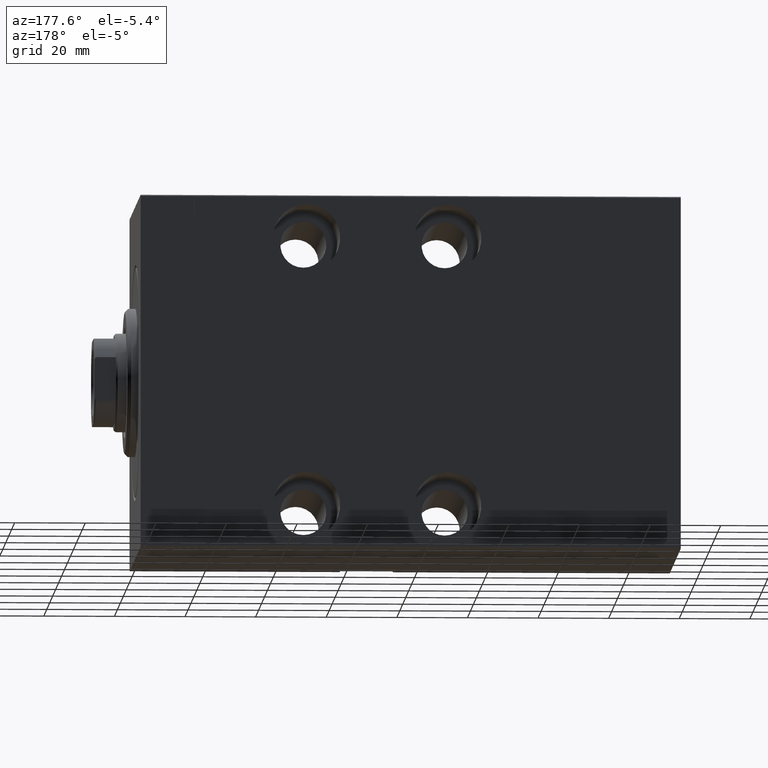
[diagram: clean part render]
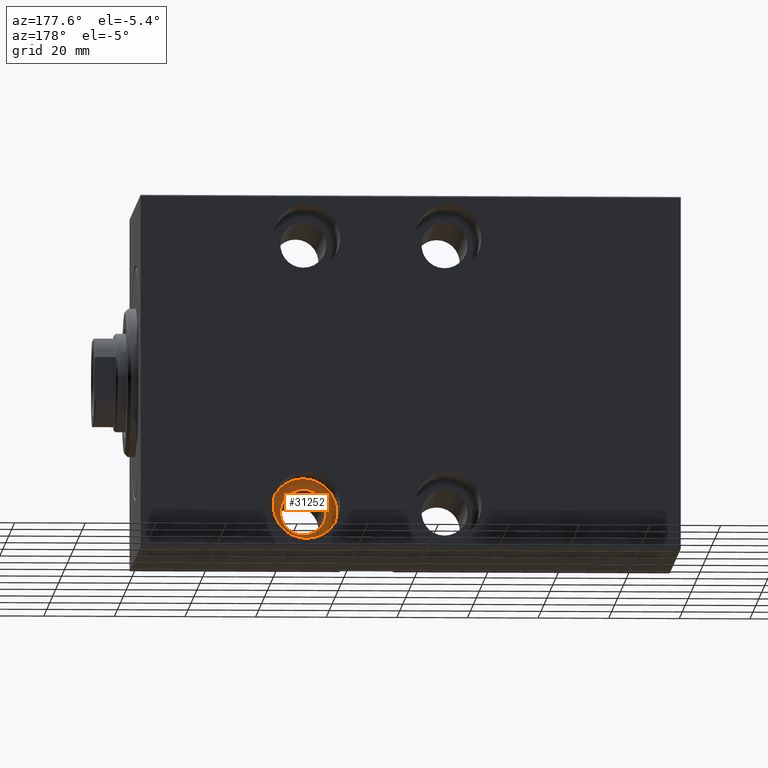
[diagram: same view with one face highlighted and labeled with its STEP entity id]
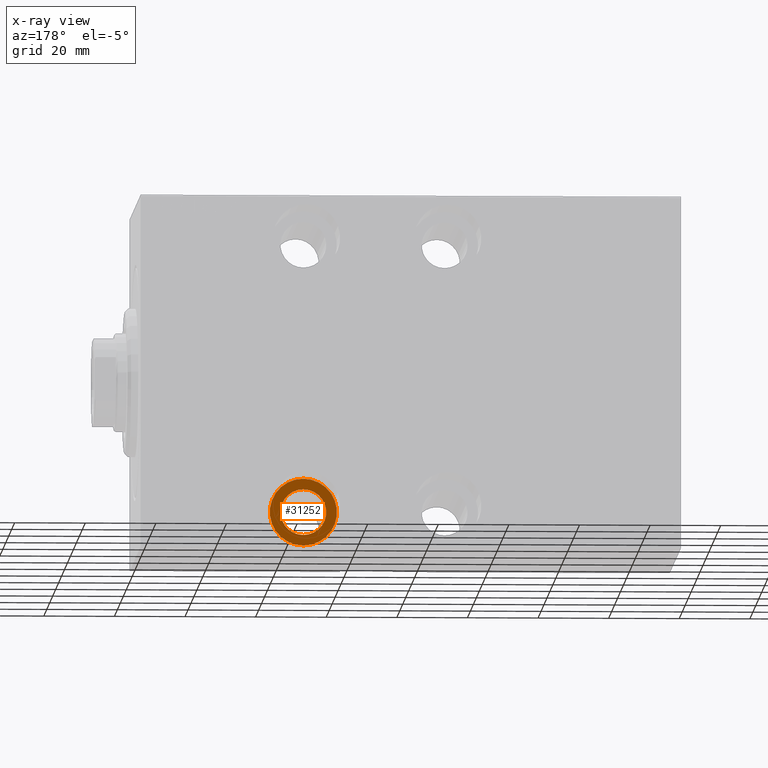
[diagram: x-ray of the same camera — body ghosted, the highlighted face saturated]
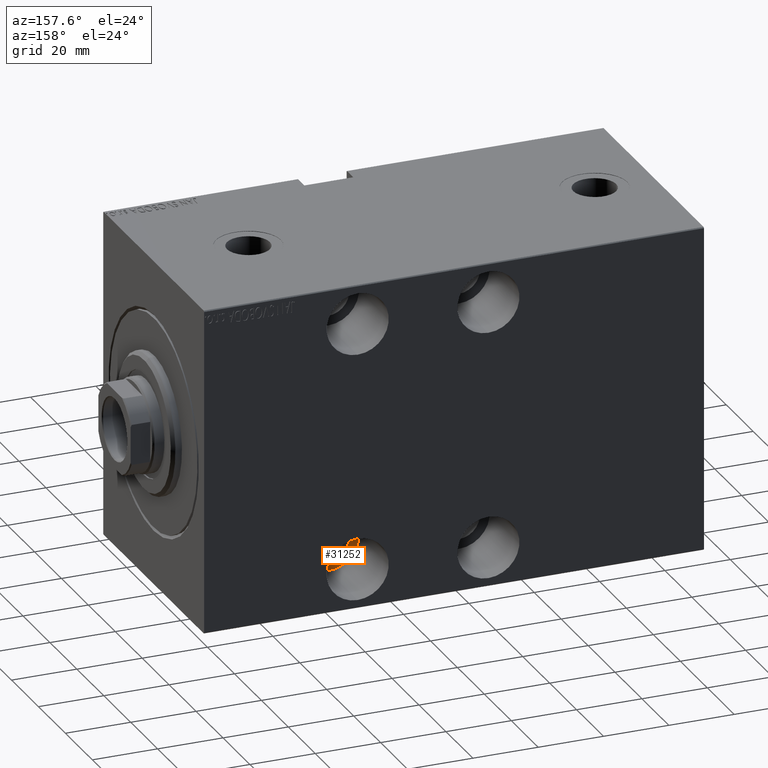
[diagram: same view with one face highlighted and labeled with its STEP entity id]
A machine part, auxiliary view. The second image highlights one B-rep face of the part: STEP entity #31252.
The next image is the same camera in x-ray: the body ghosted, the highlighted face saturated — about 0% of this face is hidden behind the body in this view.
A second angle (auxiliary view) of the same face is appended — the face is thin or edge-on in the first view.
In plain terms, the highlighted planar face has unit normal (-0, 1, 0).
Its self-contained STEP definition (entity closure, byte-faithful):
#754 = DIRECTION ( 'NONE',  ( 0.000000000000000000, 0.000000000000000000, -1.000000000000000000 ) ) ;
#1813 = DIRECTION ( 'NONE',  ( 0.000000000000000000, 0.000000000000000000, -1.000000000000000000 ) ) ;
#2140 = EDGE_CURVE ( 'NONE', #27194, #10150, #33462, .T. ) ;
#2832 = PLANE ( 'NONE',  #41773 ) ;
#3700 = DIRECTION ( 'NONE',  ( 0.000000000000000000, -0.000000000000000000, -1.000000000000000000 ) ) ;
#4249 = CIRCLE ( 'NONE', #39663, 6.499999999999999112 ) ;
#7349 = AXIS2_PLACEMENT_3D ( 'NONE', #15076, #31494, #28610 ) ;
#7776 = VERTEX_POINT ( 'NONE', #41067 ) ;
#7947 = CARTESIAN_POINT ( 'NONE',  ( 47.00000000000000000, -15.49999999999999289, -47.49999999999999289 ) ) ;
#8671 = AXIS2_PLACEMENT_3D ( 'NONE', #19577, #40218, #19345 ) ;
#8885 = CARTESIAN_POINT ( 'NONE',  ( 47.00000000000000000, -15.49999999999999289, -28.49999999999998934 ) ) ;
#10150 = VERTEX_POINT ( 'NONE', #7947 ) ;
#15076 = CARTESIAN_POINT ( 'NONE',  ( 47.00000000000000000, -15.49999999999999289, -37.99999999999999289 ) ) ;
#16538 = DIRECTION ( 'NONE',  ( 0.000000000000000000, -1.000000000000000000, 0.000000000000000000 ) ) ;
#16659 = ORIENTED_EDGE ( 'NONE', *, *, #43308, .T. ) ;
#17460 = AXIS2_PLACEMENT_3D ( 'NONE', #33403, #16538, #754 ) ;
#19345 = DIRECTION ( 'NONE',  ( 0.000000000000000000, 0.000000000000000000, -1.000000000000000000 ) ) ;
#19577 = CARTESIAN_POINT ( 'NONE',  ( 47.00000000000000000, -15.49999999999999289, -37.99999999999999289 ) ) ;
#20557 = DIRECTION ( 'NONE',  ( 0.000000000000000000, -1.000000000000000000, 0.000000000000000000 ) ) ;
#21250 = EDGE_LOOP ( 'NONE', ( #37814, #42686 ) ) ;
#22227 = DIRECTION ( 'NONE',  ( -0.000000000000000000, 1.000000000000000000, -0.000000000000000000 ) ) ;
#26485 = CIRCLE ( 'NONE', #7349, 6.499999999999999112 ) ;
#26710 = VERTEX_POINT ( 'NONE', #42989 ) ;
#26792 = FACE_OUTER_BOUND ( 'NONE', #27348, .T. ) ;
#27194 = VERTEX_POINT ( 'NONE', #8885 ) ;
#27348 = EDGE_LOOP ( 'NONE', ( #16659, #27931 ) ) ;
#27931 = ORIENTED_EDGE ( 'NONE', *, *, #2140, .T. ) ;
#28610 = DIRECTION ( 'NONE',  ( 0.000000000000000000, 0.000000000000000000, -1.000000000000000000 ) ) ;
#31252 = ADVANCED_FACE ( 'NONE', ( #26792, #33875 ), #2832, .T. ) ;
#31494 = DIRECTION ( 'NONE',  ( -0.000000000000000000, 1.000000000000000000, -0.000000000000000000 ) ) ;
#31902 = EDGE_CURVE ( 'NONE', #7776, #26710, #4249, .T. ) ;
#33095 = CIRCLE ( 'NONE', #17460, 9.500000000000001776 ) ;
#33403 = CARTESIAN_POINT ( 'NONE',  ( 47.00000000000000000, -15.49999999999999289, -37.99999999999999289 ) ) ;
#33462 = CIRCLE ( 'NONE', #8671, 9.500000000000001776 ) ;
#33875 = FACE_BOUND ( 'NONE', #21250, .T. ) ;
#35015 = EDGE_CURVE ( 'NONE', #26710, #7776, #26485, .T. ) ;
#35759 = CARTESIAN_POINT ( 'NONE',  ( 47.00000000000000000, -15.49999999999999289, -37.99999999999999289 ) ) ;
#37814 = ORIENTED_EDGE ( 'NONE', *, *, #31902, .T. ) ;
#39663 = AXIS2_PLACEMENT_3D ( 'NONE', #35759, #22227, #1813 ) ;
#40218 = DIRECTION ( 'NONE',  ( 0.000000000000000000, -1.000000000000000000, 0.000000000000000000 ) ) ;
#40321 = CARTESIAN_POINT ( 'NONE',  ( 47.00000000000000000, -15.49999999999999289, -37.99999999999999289 ) ) ;
#41067 = CARTESIAN_POINT ( 'NONE',  ( 47.00000000000000000, -15.49999999999999289, -31.49999999999999289 ) ) ;
#41773 = AXIS2_PLACEMENT_3D ( 'NONE', #40321, #20557, #3700 ) ;
#42686 = ORIENTED_EDGE ( 'NONE', *, *, #35015, .T. ) ;
#42989 = CARTESIAN_POINT ( 'NONE',  ( 47.00000000000000000, -15.49999999999999289, -44.49999999999999289 ) ) ;
#43308 = EDGE_CURVE ( 'NONE', #10150, #27194, #33095, .T. ) ;